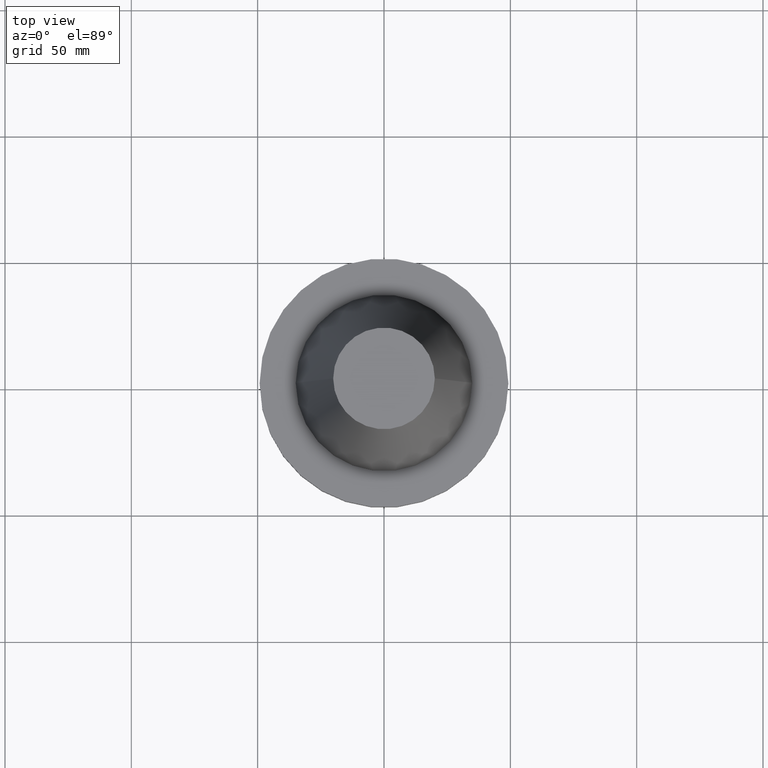
[diagram: clean part render]
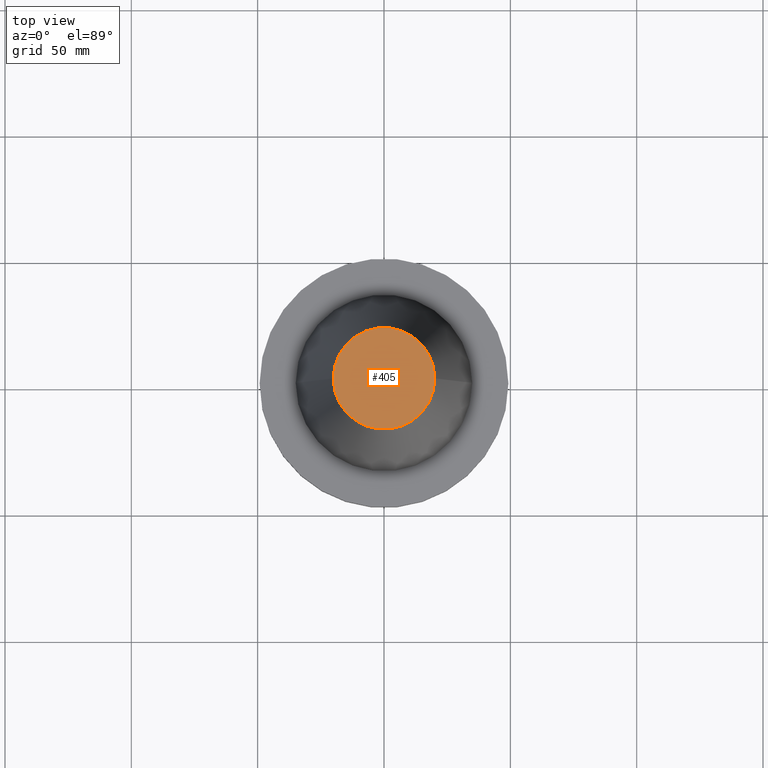
[diagram: same view with one face highlighted and labeled with its STEP entity id]
A machine part, top view. The second image highlights one B-rep face of the part: STEP entity #405.
In plain terms, the highlighted planar face has unit normal (0, 0, -1).
Its self-contained STEP definition (entity closure, byte-faithful):
#1 = EDGE_CURVE ( 'NONE', #834, #546, #596, .T. ) ;
#212 = EDGE_CURVE ( 'NONE', #546, #834, #652, .T. ) ;
#225 = ORIENTED_EDGE ( 'NONE', *, *, #212, .T. ) ;
#258 = DIRECTION ( 'NONE',  ( 1.000000000000000000, 0.000000000000000000, 0.000000000000000000 ) ) ;
#259 = DIRECTION ( 'NONE',  ( 1.000000000000000000, 0.000000000000000000, 0.000000000000000000 ) ) ;
#292 = ORIENTED_EDGE ( 'NONE', *, *, #1, .T. ) ;
#302 = EDGE_LOOP ( 'NONE', ( #292, #225 ) ) ;
#328 = DIRECTION ( 'NONE',  ( -0.000000000000000000, -0.000000000000000000, 1.000000000000000000 ) ) ;
#329 = CARTESIAN_POINT ( 'NONE',  ( 0.000000000000000000, 0.000000000000000000, 101.5999999999999801 ) ) ;
#405 = ADVANCED_FACE ( 'NONE', ( #620 ), #557, .F. ) ;
#479 = CARTESIAN_POINT ( 'NONE',  ( -20.10819343178871321, 0.000000000000000000, 101.5999999999999801 ) ) ;
#514 = AXIS2_PLACEMENT_3D ( 'NONE', #329, #798, #259 ) ;
#546 = VERTEX_POINT ( 'NONE', #575 ) ;
#557 = PLANE ( 'NONE',  #631 ) ;
#575 = CARTESIAN_POINT ( 'NONE',  ( 20.10819343178871321, 3.369811209154858606E-15, 101.5999999999999801 ) ) ;
#596 = CIRCLE ( 'NONE', #514, 20.10819343178871321 ) ;
#607 = DIRECTION ( 'NONE',  ( -1.000000000000000000, 0.000000000000000000, -0.000000000000000000 ) ) ;
#620 = FACE_OUTER_BOUND ( 'NONE', #302, .T. ) ;
#631 = AXIS2_PLACEMENT_3D ( 'NONE', #819, #673, #607 ) ;
#652 = CIRCLE ( 'NONE', #756, 20.10819343178871321 ) ;
#673 = DIRECTION ( 'NONE',  ( 0.000000000000000000, 0.000000000000000000, -1.000000000000000000 ) ) ;
#756 = AXIS2_PLACEMENT_3D ( 'NONE', #840, #328, #258 ) ;
#798 = DIRECTION ( 'NONE',  ( -0.000000000000000000, -0.000000000000000000, 1.000000000000000000 ) ) ;
#819 = CARTESIAN_POINT ( 'NONE',  ( 0.000000000000000000, 20.10819343178871321, 101.5999999999999943 ) ) ;
#834 = VERTEX_POINT ( 'NONE', #479 ) ;
#840 = CARTESIAN_POINT ( 'NONE',  ( 0.000000000000000000, 0.000000000000000000, 101.5999999999999801 ) ) ;